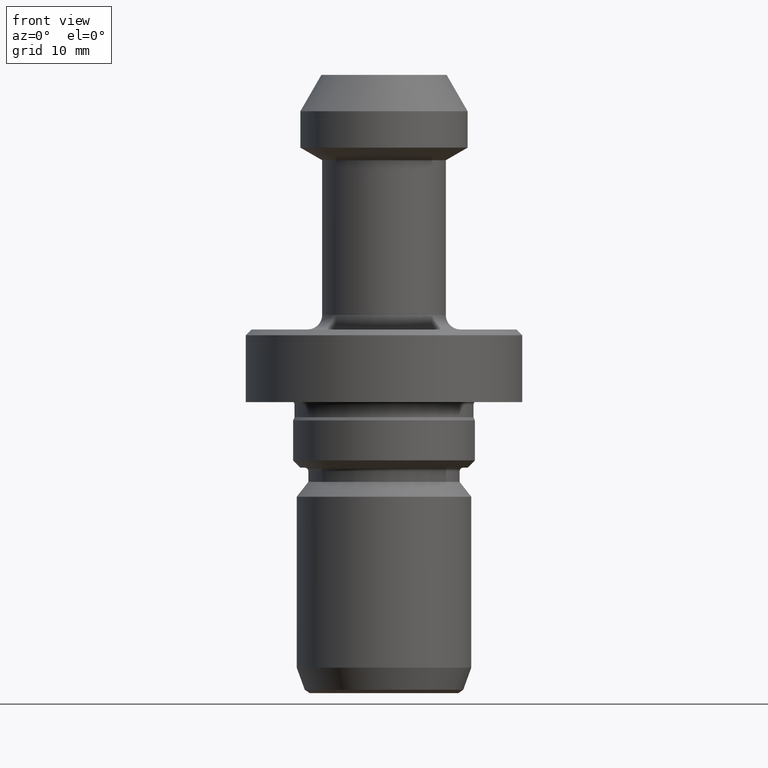
[diagram: clean part render]
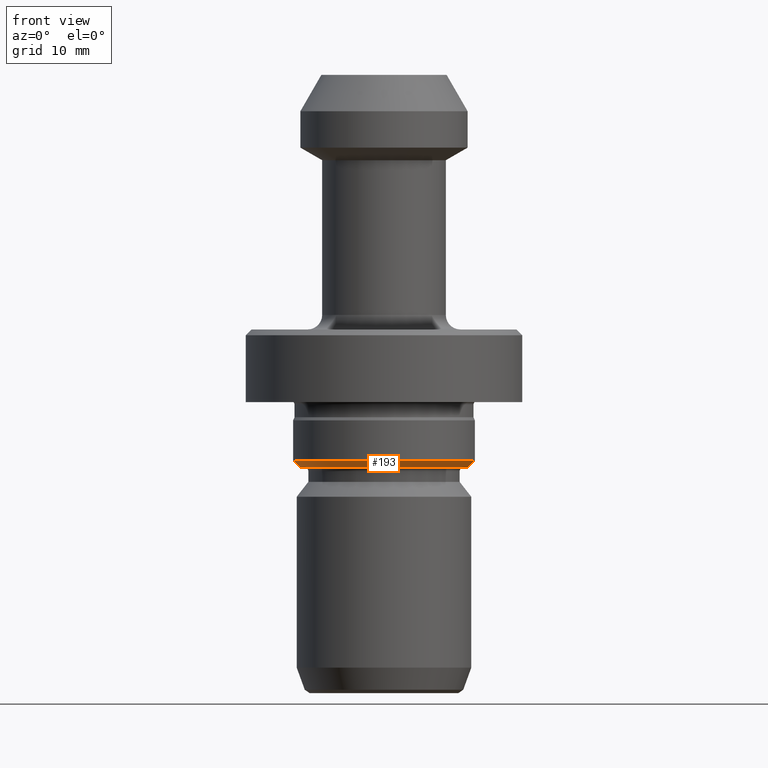
[diagram: same view with one face highlighted and labeled with its STEP entity id]
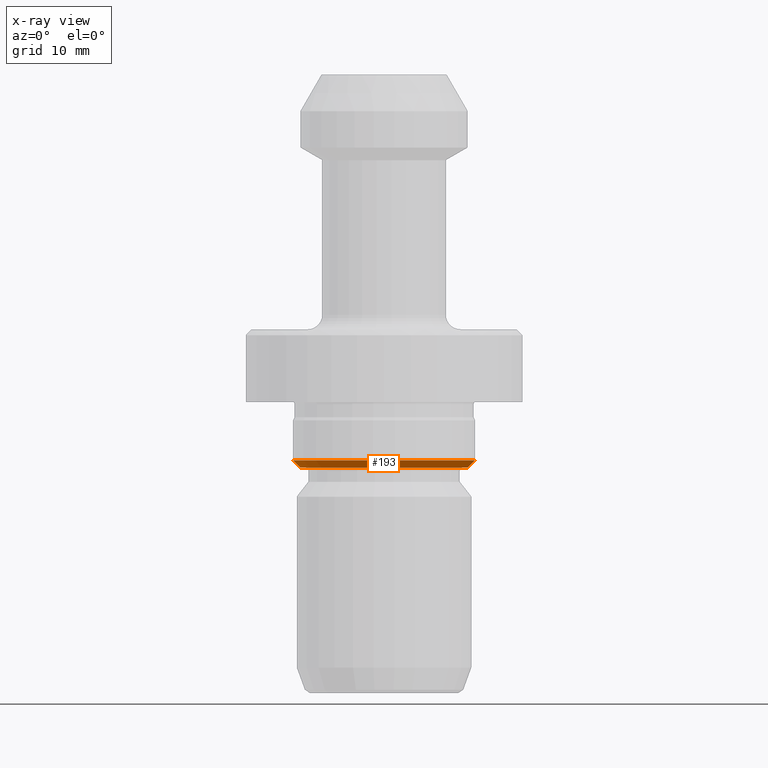
[diagram: x-ray of the same camera — body ghosted, the highlighted face saturated]
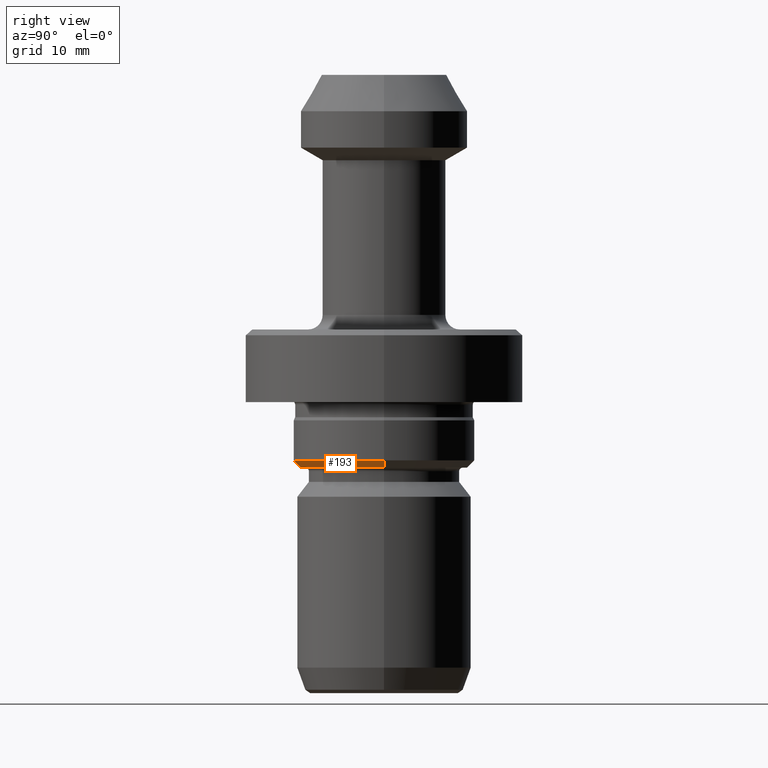
[diagram: same view with one face highlighted and labeled with its STEP entity id]
A machine part, front view. The second image highlights one B-rep face of the part: STEP entity #193.
The next image is the same camera in x-ray: the body ghosted, the highlighted face saturated — about 0% of this face is hidden behind the body in this view.
A second angle (right view) of the same face is appended — the face is thin or edge-on in the first view.
In plain terms, the highlighted conical surface has half-angle 45 deg.
Its self-contained STEP definition (entity closure, byte-faithful):
#70 = LINE ( 'NONE', #1076, #1006 ) ;
#95 = CARTESIAN_POINT ( 'NONE',  ( -12.50000000000000000, 1.530808498934191500E-015, -52.99999999999999300 ) ) ;
#98 = DIRECTION ( 'NONE',  ( 0.7071067811865597900, 0.0000000000000000000, 0.7071067811865352500 ) ) ;
#99 = EDGE_CURVE ( 'NONE', #671, #248, #1117, .T. ) ;
#116 = DIRECTION ( 'NONE',  ( 1.000000000000000000, 0.0000000000000000000, 0.0000000000000000000 ) ) ;
#159 = EDGE_LOOP ( 'NONE', ( #419, #273, #719, #260 ) ) ;
#177 = AXIS2_PLACEMENT_3D ( 'NONE', #1043, #934, #949 ) ;
#193 = ADVANCED_FACE ( 'NONE', ( #539 ), #726, .T. ) ;
#248 = VERTEX_POINT ( 'NONE', #95 ) ;
#260 = ORIENTED_EDGE ( 'NONE', *, *, #436, .F. ) ;
#273 = ORIENTED_EDGE ( 'NONE', *, *, #767, .T. ) ;
#308 = DIRECTION ( 'NONE',  ( -0.0000000000000000000, -0.0000000000000000000, 1.000000000000000000 ) ) ;
#321 = CARTESIAN_POINT ( 'NONE',  ( 12.50000000000000000, 0.0000000000000000000, -52.99999999999999300 ) ) ;
#332 = VERTEX_POINT ( 'NONE', #901 ) ;
#345 = CIRCLE ( 'NONE', #177, 12.50000000000000000 ) ;
#384 = VECTOR ( 'NONE', #979, 1000.000000000000000 ) ;
#419 = ORIENTED_EDGE ( 'NONE', *, *, #99, .F. ) ;
#436 = EDGE_CURVE ( 'NONE', #248, #997, #345, .T. ) ;
#506 = CARTESIAN_POINT ( 'NONE',  ( -11.50000000000000000, 1.408343819019456200E-015, -53.99999999999995700 ) ) ;
#512 = CIRCLE ( 'NONE', #1067, 11.50000000000000000 ) ;
#539 = FACE_OUTER_BOUND ( 'NONE', #159, .T. ) ;
#571 = DIRECTION ( 'NONE',  ( -0.0000000000000000000, -0.0000000000000000000, 1.000000000000000000 ) ) ;
#671 = VERTEX_POINT ( 'NONE', #918 ) ;
#708 = EDGE_CURVE ( 'NONE', #332, #997, #70, .T. ) ;
#719 = ORIENTED_EDGE ( 'NONE', *, *, #708, .T. ) ;
#726 = CONICAL_SURFACE ( 'NONE', #984, 11.50000000000000000, 0.7853981633974657100 ) ;
#757 = CARTESIAN_POINT ( 'NONE',  ( 0.0000000000000000000, 0.0000000000000000000, -53.99999999999995700 ) ) ;
#767 = EDGE_CURVE ( 'NONE', #671, #332, #512, .T. ) ;
#789 = CARTESIAN_POINT ( 'NONE',  ( 0.0000000000000000000, 0.0000000000000000000, -53.99999999999995700 ) ) ;
#901 = CARTESIAN_POINT ( 'NONE',  ( 11.50000000000000000, 0.0000000000000000000, -53.99999999999995700 ) ) ;
#918 = CARTESIAN_POINT ( 'NONE',  ( -11.50000000000000000, 1.469576158976823900E-015, -53.99999999999995700 ) ) ;
#934 = DIRECTION ( 'NONE',  ( -0.0000000000000000000, -0.0000000000000000000, 1.000000000000000000 ) ) ;
#949 = DIRECTION ( 'NONE',  ( 1.000000000000000000, 0.0000000000000000000, 0.0000000000000000000 ) ) ;
#979 = DIRECTION ( 'NONE',  ( -0.7071067811865597900, 8.659560562355083200E-017, 0.7071067811865352500 ) ) ;
#984 = AXIS2_PLACEMENT_3D ( 'NONE', #789, #308, #1132 ) ;
#997 = VERTEX_POINT ( 'NONE', #321 ) ;
#1006 = VECTOR ( 'NONE', #98, 1000.000000000000000 ) ;
#1043 = CARTESIAN_POINT ( 'NONE',  ( 0.0000000000000000000, 0.0000000000000000000, -52.99999999999999300 ) ) ;
#1067 = AXIS2_PLACEMENT_3D ( 'NONE', #757, #571, #116 ) ;
#1076 = CARTESIAN_POINT ( 'NONE',  ( 11.50000000000000000, 0.0000000000000000000, -53.99999999999995700 ) ) ;
#1117 = LINE ( 'NONE', #506, #384 ) ;
#1132 = DIRECTION ( 'NONE',  ( 1.000000000000000000, 0.0000000000000000000, 0.0000000000000000000 ) ) ;